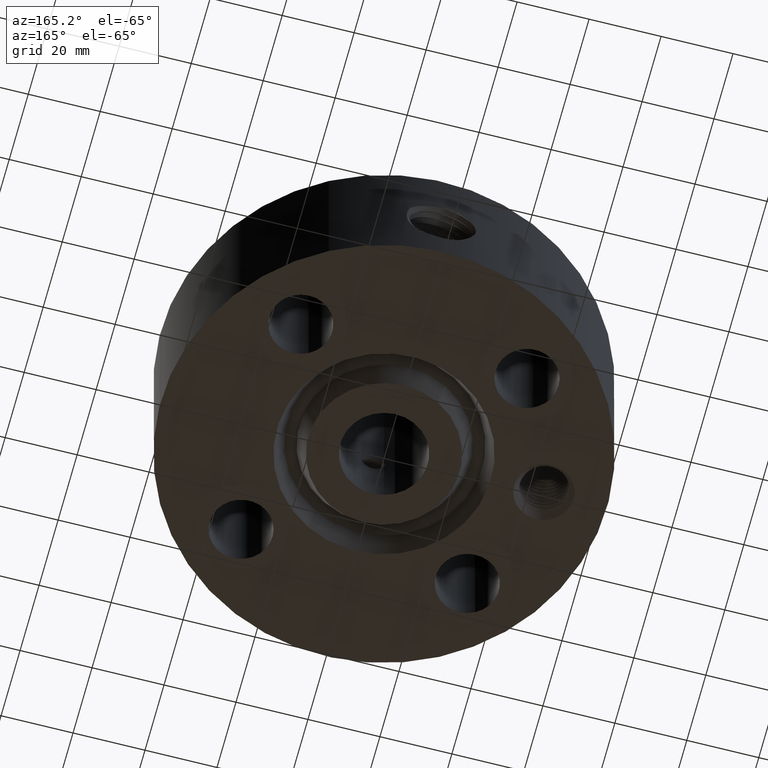
[diagram: clean part render]
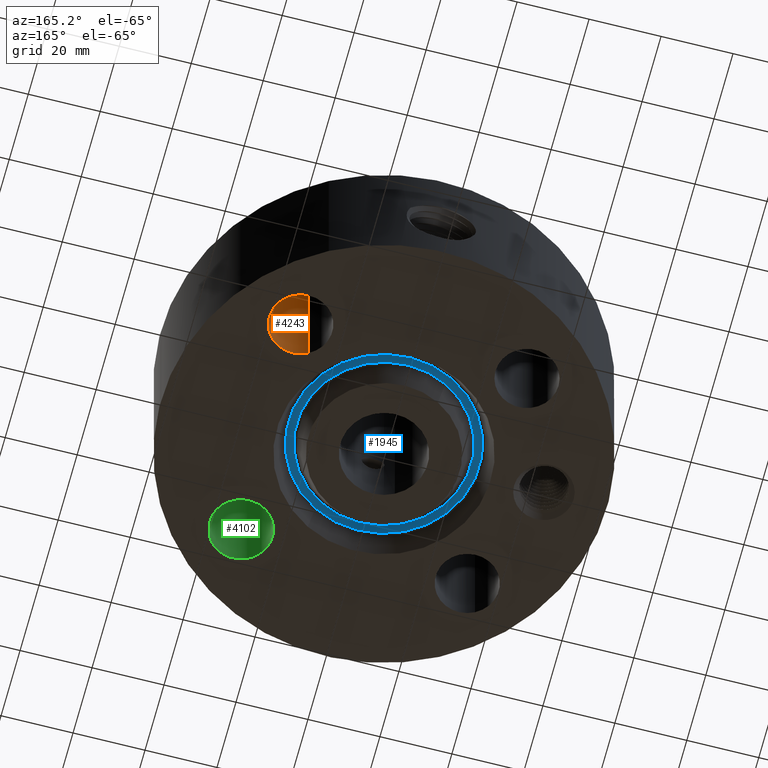
[diagram: same view with three faces highlighted in distinct colors, each labeled with its STEP entity id]
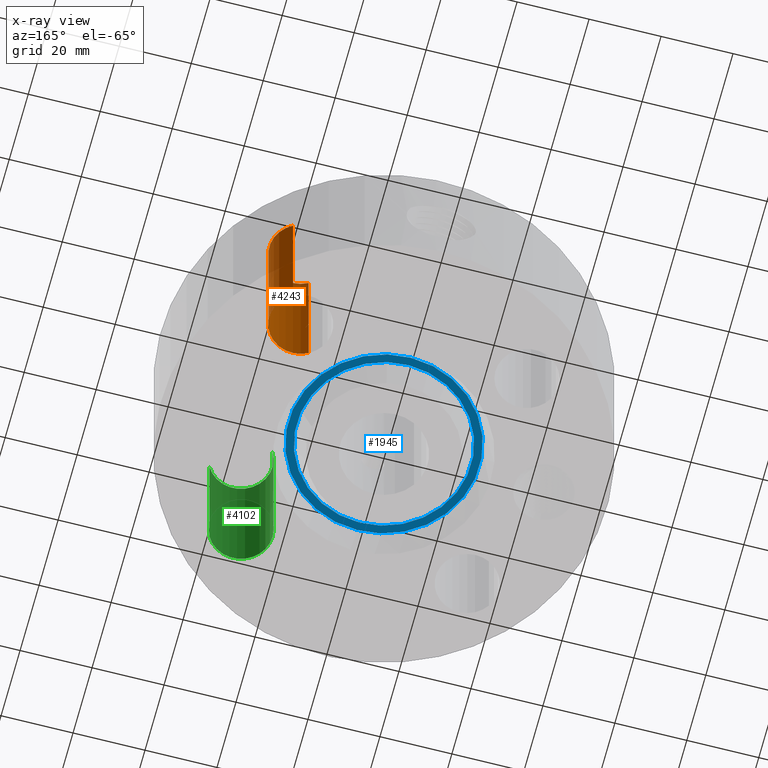
[diagram: x-ray of the same camera — body ghosted, the three highlighted faces saturated]
A machine part, auxiliary view with three faces highlighted in distinct colors.
The next image is the same camera in x-ray (body ghosted, the three faces saturated) — at least one of them is partly hidden behind the body in this view.
Their STEP definitions:

[orange] entity #4243 — the highlighted cylindrical surface (edge-blend (fillet) strip) has radius 8.763 mm, axis along (0, 0, -1).
#3012=AXIS2_PLACEMENT_3D('Circle Axis2P3D',#3010,#3011,$) ;
#4204=AXIS2_PLACEMENT_3D('Cylinder Axis2P3D',#4201,#4202,#4203) ;
#4234=AXIS2_PLACEMENT_3D('Circle Axis2P3D',#4232,#4233,$) ;
#3010=CARTESIAN_POINT('Axis2P3D Location',(1.23743686708,1.23743686708,1.75000000001)) ;
#3014=CARTESIAN_POINT('Vertex',(1.4028386779,1.54020285093,1.75000000001)) ;
#3016=CARTESIAN_POINT('Vertex',(1.07203505626,0.934670883228,1.75000000001)) ;
#4201=CARTESIAN_POINT('Axis2P3D Location',(1.23743686708,1.23743686708,1.74606299213)) ;
#4206=CARTESIAN_POINT('Line Origine',(1.07203505626,0.934670883228,0.875000000003)) ;
#4210=CARTESIAN_POINT('Vertex',(1.07203505626,0.934670883228,0.)) ;
#4217=CARTESIAN_POINT('Vertex',(1.4028386779,1.54020285093,0.)) ;
#4220=CARTESIAN_POINT('Line Origine',(1.4028386779,1.54020285093,0.875000000003)) ;
#4232=CARTESIAN_POINT('Axis2P3D Location',(1.23743686708,1.23743686708,0.)) ;
#3011=DIRECTION('Axis2P3D Direction',(0.,0.,-0.0393700787402)) ;
#4202=DIRECTION('Axis2P3D Direction',(0.,0.,-0.0393700787402)) ;
#4203=DIRECTION('Axis2P3D XDirection',(0.0188750212049,0.0345504945626,0.)) ;
#4207=DIRECTION('Vector Direction',(0.,0.,-0.0393700787402)) ;
#4221=DIRECTION('Vector Direction',(0.,0.,-0.0393700787402)) ;
#4233=DIRECTION('Axis2P3D Direction',(0.,0.,-0.0393700787402)) ;
#4208=VECTOR('Line Direction',#4207,0.0393700787402) ;
#4222=VECTOR('Line Direction',#4221,0.0393700787402) ;
#4238=ORIENTED_EDGE('',*,*,#4224,.F.) ;
#4239=ORIENTED_EDGE('',*,*,#4236,.T.) ;
#4240=ORIENTED_EDGE('',*,*,#4212,.T.) ;
#4241=ORIENTED_EDGE('',*,*,#3018,.F.) ;
#4243=ADVANCED_FACE('PartBody',(#4242),#4205,.F.) ;
#3013=CIRCLE('generated circle',#3012,0.345000000001) ;
#4235=CIRCLE('generated circle',#4234,0.345000000001) ;
#4205=CYLINDRICAL_SURFACE('generated cylinder',#4204,0.345000000001) ;
#3018=EDGE_CURVE('',#3015,#3017,#3013,.T.) ;
#4212=EDGE_CURVE('',#4211,#3017,#4209,.F.) ;
#4224=EDGE_CURVE('',#4218,#3015,#4223,.F.) ;
#4236=EDGE_CURVE('',#4218,#4211,#4235,.T.) ;
#4237=EDGE_LOOP('',(#4238,#4239,#4240,#4241)) ;
#4242=FACE_OUTER_BOUND('',#4237,.T.) ;
#4209=LINE('Line',#4206,#4208) ;
#4223=LINE('Line',#4220,#4222) ;
#3015=VERTEX_POINT('',#3014) ;
#3017=VERTEX_POINT('',#3016) ;
#4211=VERTEX_POINT('',#4210) ;
#4218=VERTEX_POINT('',#4217) ;

[blue] entity #1945 — the highlighted planar face has unit normal (0, 0, 1).
#1425=AXIS2_PLACEMENT_3D('Circle Axis2P3D',#1423,#1424,$) ;
#1451=AXIS2_PLACEMENT_3D('Circle Axis2P3D',#1449,#1450,$) ;
#1921=AXIS2_PLACEMENT_3D('Plane Axis2P3D',#1918,#1919,#1920) ;
#1925=AXIS2_PLACEMENT_3D('Circle Axis2P3D',#1923,#1924,$) ;
#1934=AXIS2_PLACEMENT_3D('Circle Axis2P3D',#1932,#1933,$) ;
#1423=CARTESIAN_POINT('Axis2P3D Location',(0.,0.,0.250000000001)) ;
#1427=CARTESIAN_POINT('Vertex',(0.457677432904,-0.837772921436,0.250000000001)) ;
#1429=CARTESIAN_POINT('Vertex',(-0.457677432904,0.837772921436,0.250000000001)) ;
#1449=CARTESIAN_POINT('Axis2P3D Location',(0.,0.,0.250000000001)) ;
#1918=CARTESIAN_POINT('Axis2P3D Location',(0.,0.954637156453,0.250000000001)) ;
#1923=CARTESIAN_POINT('Axis2P3D Location',(0.,0.,0.250000000001)) ;
#1927=CARTESIAN_POINT('Vertex',(-0.501173644308,0.917392202352,0.250000000001)) ;
#1929=CARTESIAN_POINT('Vertex',(0.501173644308,-0.917392202352,0.250000000001)) ;
#1932=CARTESIAN_POINT('Axis2P3D Location',(0.,0.,0.250000000001)) ;
#1424=DIRECTION('Axis2P3D Direction',(0.,0.,0.0393700787402)) ;
#1450=DIRECTION('Axis2P3D Direction',(0.,0.,0.0393700787402)) ;
#1919=DIRECTION('Axis2P3D Direction',(0.,0.,0.0393700787402)) ;
#1920=DIRECTION('Axis2P3D XDirection',(0.0393700787402,0.,0.)) ;
#1924=DIRECTION('Axis2P3D Direction',(0.,0.,0.0393700787402)) ;
#1933=DIRECTION('Axis2P3D Direction',(0.,0.,0.0393700787402)) ;
#1938=ORIENTED_EDGE('',*,*,#1931,.F.) ;
#1939=ORIENTED_EDGE('',*,*,#1936,.F.) ;
#1942=ORIENTED_EDGE('',*,*,#1431,.T.) ;
#1943=ORIENTED_EDGE('',*,*,#1453,.T.) ;
#1944=FACE_BOUND('',#1941,.T.) ;
#1945=ADVANCED_FACE('PartBody',(#1940,#1944),#1922,.F.) ;
#1426=CIRCLE('generated circle',#1425,0.954637156453) ;
#1452=CIRCLE('generated circle',#1451,0.954637156453) ;
#1926=CIRCLE('generated circle',#1925,1.04536284355) ;
#1935=CIRCLE('generated circle',#1934,1.04536284355) ;
#1431=EDGE_CURVE('',#1428,#1430,#1426,.T.) ;
#1453=EDGE_CURVE('',#1430,#1428,#1452,.T.) ;
#1931=EDGE_CURVE('',#1928,#1930,#1926,.T.) ;
#1936=EDGE_CURVE('',#1930,#1928,#1935,.T.) ;
#1937=EDGE_LOOP('',(#1938,#1939)) ;
#1941=EDGE_LOOP('',(#1942,#1943)) ;
#1940=FACE_OUTER_BOUND('',#1937,.T.) ;
#1922=PLANE('',#1921) ;
#1428=VERTEX_POINT('',#1427) ;
#1430=VERTEX_POINT('',#1429) ;
#1928=VERTEX_POINT('',#1927) ;
#1930=VERTEX_POINT('',#1929) ;

[green] entity #4102 — the highlighted cylindrical surface (edge-blend (fillet) strip) has radius 8.763 mm, axis along (0, -0, -1).
#2963=AXIS2_PLACEMENT_3D('Circle Axis2P3D',#2961,#2962,$) ;
#4075=AXIS2_PLACEMENT_3D('Cylinder Axis2P3D',#4072,#4073,#4074) ;
#4086=AXIS2_PLACEMENT_3D('Circle Axis2P3D',#4084,#4085,$) ;
#2956=CARTESIAN_POINT('Vertex',(0.934670883228,-1.07203505626,1.75000000001)) ;
#2958=CARTESIAN_POINT('Vertex',(1.54020285093,-1.4028386779,1.75000000001)) ;
#2961=CARTESIAN_POINT('Axis2P3D Location',(1.23743686708,-1.23743686708,1.75000000001)) ;
#4072=CARTESIAN_POINT('Axis2P3D Location',(1.23743686708,-1.23743686708,1.74606299213)) ;
#4077=CARTESIAN_POINT('Line Origine',(1.54020285093,-1.4028386779,0.875000000003)) ;
#4081=CARTESIAN_POINT('Vertex',(1.54020285093,-1.4028386779,0.)) ;
#4084=CARTESIAN_POINT('Axis2P3D Location',(1.23743686708,-1.23743686708,0.)) ;
#4088=CARTESIAN_POINT('Vertex',(0.934670883228,-1.07203505626,0.)) ;
#4091=CARTESIAN_POINT('Line Origine',(0.934670883228,-1.07203505626,0.875000000003)) ;
#2962=DIRECTION('Axis2P3D Direction',(0.,0.,-0.0393700787402)) ;
#4073=DIRECTION('Axis2P3D Direction',(0.,-0.,-0.0393700787402)) ;
#4074=DIRECTION('Axis2P3D XDirection',(-0.0345504945626,0.0188750212049,0.)) ;
#4078=DIRECTION('Vector Direction',(0.,0.,-0.0393700787402)) ;
#4085=DIRECTION('Axis2P3D Direction',(0.,-0.,-0.0393700787402)) ;
#4092=DIRECTION('Vector Direction',(0.,0.,-0.0393700787402)) ;
#4079=VECTOR('Line Direction',#4078,0.0393700787402) ;
#4093=VECTOR('Line Direction',#4092,0.0393700787402) ;
#4097=ORIENTED_EDGE('',*,*,#4083,.F.) ;
#4098=ORIENTED_EDGE('',*,*,#4090,.T.) ;
#4099=ORIENTED_EDGE('',*,*,#4095,.T.) ;
#4100=ORIENTED_EDGE('',*,*,#2965,.F.) ;
#4102=ADVANCED_FACE('PartBody',(#4101),#4076,.F.) ;
#2964=CIRCLE('generated circle',#2963,0.345000000001) ;
#4087=CIRCLE('generated circle',#4086,0.345000000001) ;
#4076=CYLINDRICAL_SURFACE('generated cylinder',#4075,0.345000000001) ;
#2965=EDGE_CURVE('',#2959,#2957,#2964,.T.) ;
#4083=EDGE_CURVE('',#4082,#2959,#4080,.F.) ;
#4090=EDGE_CURVE('',#4082,#4089,#4087,.T.) ;
#4095=EDGE_CURVE('',#4089,#2957,#4094,.F.) ;
#4096=EDGE_LOOP('',(#4097,#4098,#4099,#4100)) ;
#4101=FACE_OUTER_BOUND('',#4096,.T.) ;
#4080=LINE('Line',#4077,#4079) ;
#4094=LINE('Line',#4091,#4093) ;
#2957=VERTEX_POINT('',#2956) ;
#2959=VERTEX_POINT('',#2958) ;
#4082=VERTEX_POINT('',#4081) ;
#4089=VERTEX_POINT('',#4088) ;